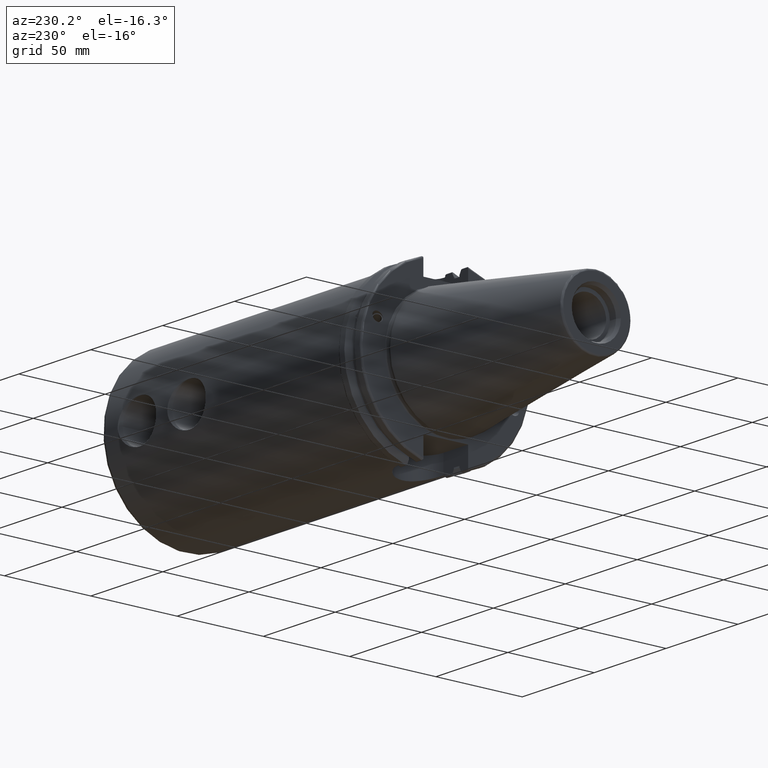
[diagram: clean part render]
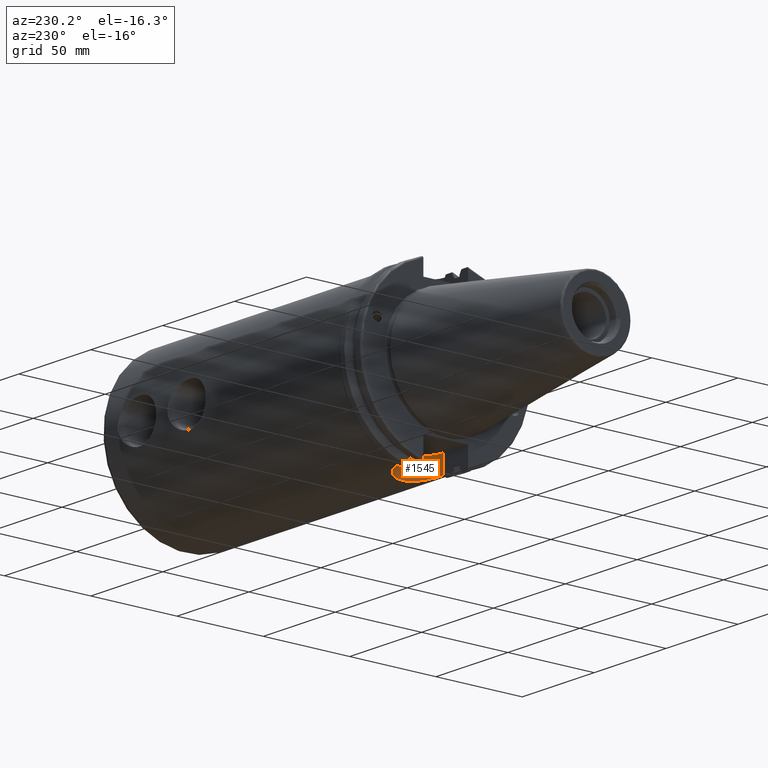
[diagram: same view with one face highlighted and labeled with its STEP entity id]
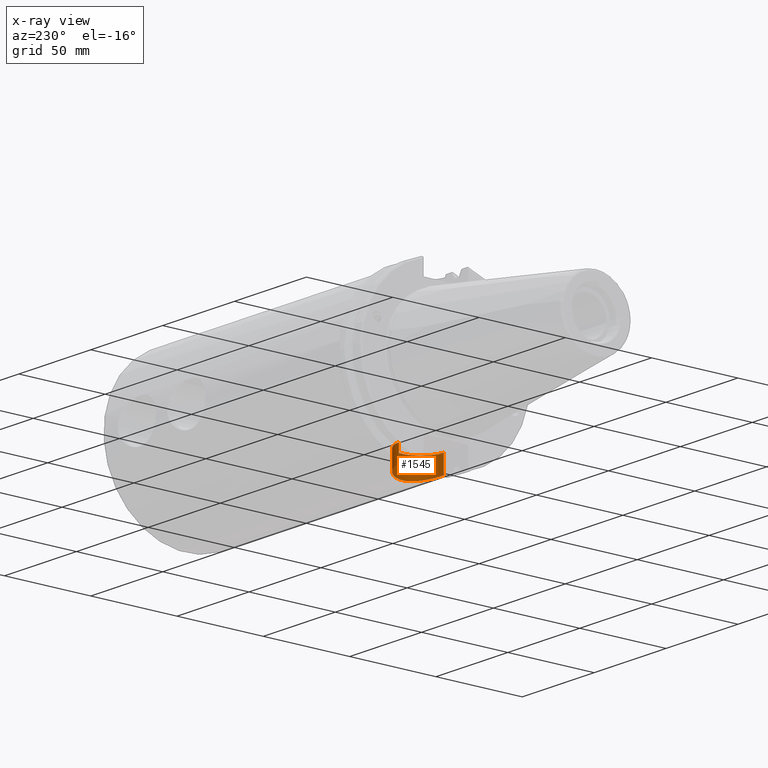
[diagram: x-ray of the same camera — body ghosted, the highlighted face saturated]
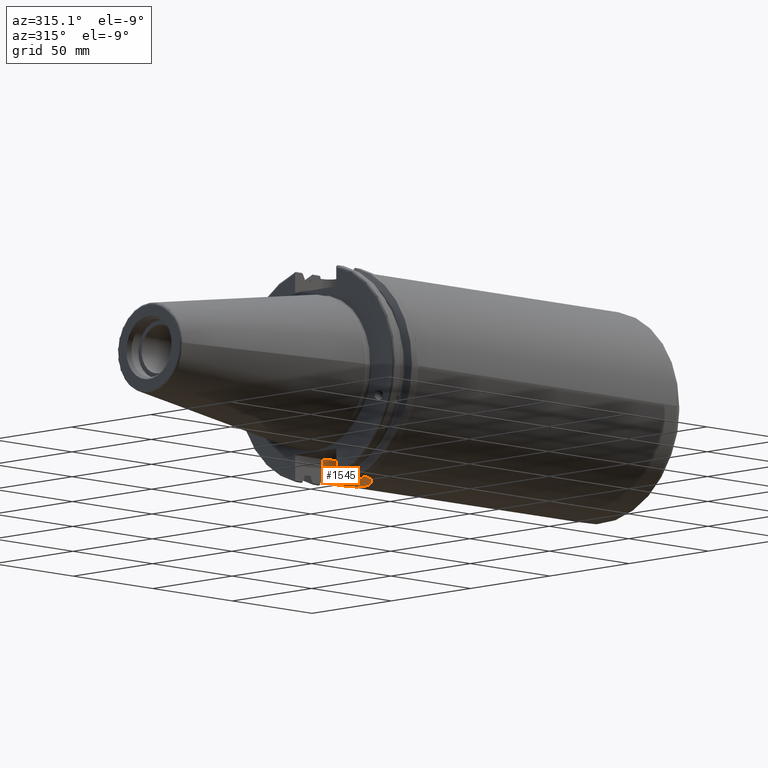
[diagram: same view with one face highlighted and labeled with its STEP entity id]
A machine part, auxiliary view. The second image highlights one B-rep face of the part: STEP entity #1545.
The next image is the same camera in x-ray: the body ghosted, the highlighted face saturated — about 2% of this face is hidden behind the body in this view.
A second angle (auxiliary view) of the same face is appended — the face is thin or edge-on in the first view.
In plain terms, the highlighted cylindrical surface (edge-blend (fillet) strip) has radius 12.95 mm, axis along (0, 0, -1).
Its self-contained STEP definition (entity closure, byte-faithful):
#111=LINE('',#2576,#199);
#112=LINE('',#2579,#200);
#199=VECTOR('',#1886,10.);
#200=VECTOR('',#1889,10.);
#282=CYLINDRICAL_SURFACE('',#1675,12.95);
#318=FACE_OUTER_BOUND('',#409,.T.);
#409=EDGE_LOOP('',(#1103,#1104,#1105,#1106));
#524=CIRCLE('',#1676,12.95);
#588=B_SPLINE_CURVE_WITH_KNOTS('',3,(#2287,#2288,#2289,#2290,#2291,#2292,
#2293,#2294,#2295,#2296,#2297,#2298,#2299,#2300,#2301,#2302,#2303,#2304),
 .UNSPECIFIED.,.F.,.F.,(4,2,2,2,2,2,2,2,4),(-3.92386372627725,-3.43333222576656,
-2.94280072525587,-2.45236629419725,-1.96193186313863,-1.47149743208001,
-0.981063001021385,-0.490531500510693,0.),.UNSPECIFIED.);
#646=VERTEX_POINT('',#2284);
#647=VERTEX_POINT('',#2286);
#672=VERTEX_POINT('',#2575);
#673=VERTEX_POINT('',#2577);
#810=EDGE_CURVE('',#646,#647,#588,.T.);
#843=EDGE_CURVE('',#672,#646,#111,.T.);
#844=EDGE_CURVE('',#673,#672,#524,.T.);
#845=EDGE_CURVE('',#673,#647,#112,.T.);
#1103=ORIENTED_EDGE('',*,*,#810,.F.);
#1104=ORIENTED_EDGE('',*,*,#843,.F.);
#1105=ORIENTED_EDGE('',*,*,#844,.F.);
#1106=ORIENTED_EDGE('',*,*,#845,.T.);
#1545=ADVANCED_FACE('',(#318),#282,.F.);
#1675=AXIS2_PLACEMENT_3D('',#2574,#1884,#1885);
#1676=AXIS2_PLACEMENT_3D('',#2578,#1887,#1888);
#1884=DIRECTION('center_axis',(0.,0.,-1.));
#1885=DIRECTION('ref_axis',(3.42926030772249E-16,1.,0.));
#1886=DIRECTION('',(0.,0.,-1.));
#1887=DIRECTION('center_axis',(0.,0.,-1.));
#1888=DIRECTION('ref_axis',(3.42926030772249E-16,1.,0.));
#1889=DIRECTION('',(0.,0.,-1.));
#2284=CARTESIAN_POINT('',(20.225,-12.95,-45.8305370359109));
#2286=CARTESIAN_POINT('',(20.225,12.95,-45.8305370359109));
#2287=CARTESIAN_POINT('Ctrl Pts',(20.225,-12.95,-45.8305370359109));
#2288=CARTESIAN_POINT('Ctrl Pts',(21.8601050017023,-12.95,-45.8305370359109));
#2289=CARTESIAN_POINT('Ctrl Pts',(23.5982008486606,-12.6215313375059,-45.9271745581605));
#2290=CARTESIAN_POINT('Ctrl Pts',(26.7861539871157,-11.2974693522578,-46.2706774016504));
#2291=CARTESIAN_POINT('Ctrl Pts',(28.236777850713,-10.3022877820185,-46.5119925490912));
#2292=CARTESIAN_POINT('Ctrl Pts',(30.5270611517779,-8.0120044809537,-46.9607264600388));
#2293=CARTESIAN_POINT('Ctrl Pts',(31.5224189407301,-6.56128717694082,-47.1980865968677));
#2294=CARTESIAN_POINT('Ctrl Pts',(32.8466101382203,-3.37299930575771,-47.5324388533782));
#2295=CARTESIAN_POINT('Ctrl Pts',(33.175,-1.63478143686208,-47.625));
#2296=CARTESIAN_POINT('Ctrl Pts',(33.175,1.63478143686206,-47.625));
#2297=CARTESIAN_POINT('Ctrl Pts',(32.8466101382203,3.37299930575769,-47.5324388533782));
#2298=CARTESIAN_POINT('Ctrl Pts',(31.5224189407301,6.5612871769408,-47.1980865968677));
#2299=CARTESIAN_POINT('Ctrl Pts',(30.5270611517779,8.01200448095369,-46.9607264600388));
#2300=CARTESIAN_POINT('Ctrl Pts',(28.2367778507131,10.3022877820185,-46.5119925490912));
#2301=CARTESIAN_POINT('Ctrl Pts',(26.7861539871158,11.2974693522578,-46.2706774016504));
#2302=CARTESIAN_POINT('Ctrl Pts',(23.5982008486606,12.6215313375059,-45.9271745581605));
#2303=CARTESIAN_POINT('Ctrl Pts',(21.8601050017023,12.95,-45.8305370359109));
#2304=CARTESIAN_POINT('Ctrl Pts',(20.225,12.95,-45.8305370359109));
#2574=CARTESIAN_POINT('Origin',(20.225,-2.22044604925031E-15,-35.306));
#2575=CARTESIAN_POINT('',(20.225,-12.95,-35.306));
#2576=CARTESIAN_POINT('',(20.225,-12.95,-35.306));
#2577=CARTESIAN_POINT('',(20.225,12.95,-35.306));
#2578=CARTESIAN_POINT('Origin',(20.225,-2.22044604925031E-15,-35.306));
#2579=CARTESIAN_POINT('',(20.225,12.95,-35.306));